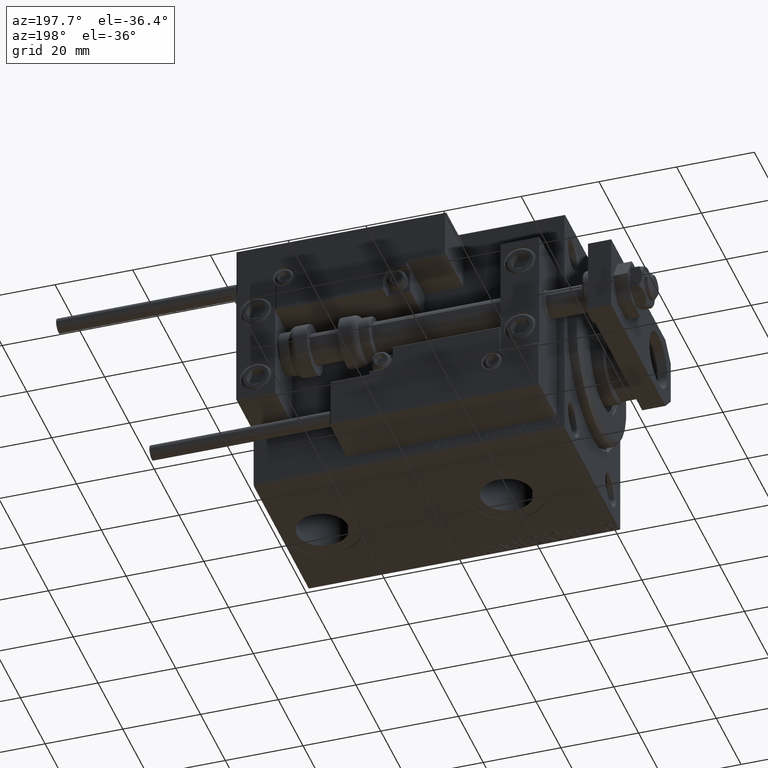
[diagram: clean part render]
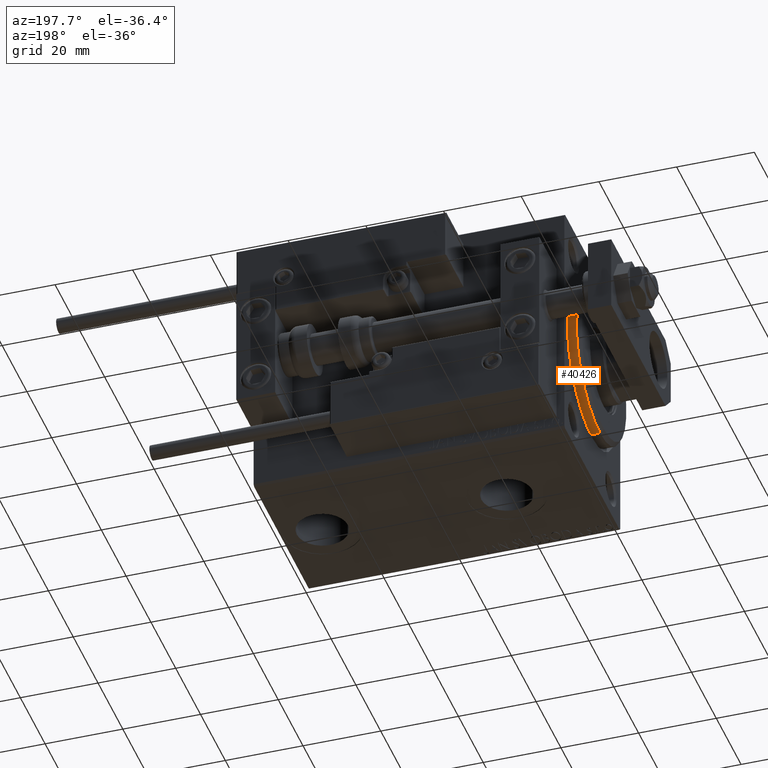
[diagram: same view with one face highlighted and labeled with its STEP entity id]
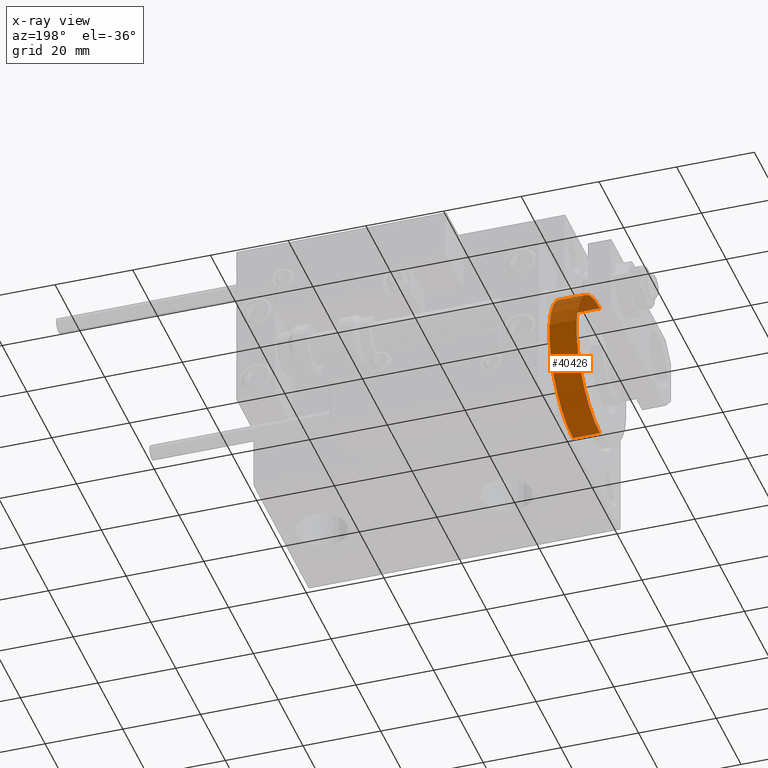
[diagram: x-ray of the same camera — body ghosted, the highlighted face saturated]
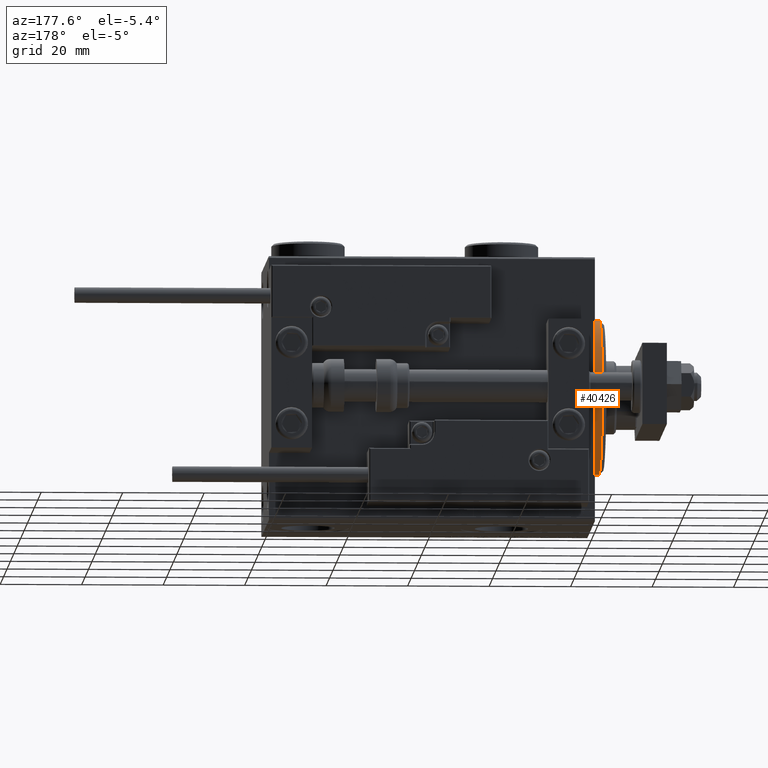
[diagram: same view with one face highlighted and labeled with its STEP entity id]
A machine part, auxiliary view. The second image highlights one B-rep face of the part: STEP entity #40426.
The next image is the same camera in x-ray: the body ghosted, the highlighted face saturated — about 11% of this face is hidden behind the body in this view.
A second angle (auxiliary view) of the same face is appended — the face is thin or edge-on in the first view.
In plain terms, the highlighted cylindrical surface (partial cylindrical patch) has radius 19 mm, axis along (1, -0, -0).
Its self-contained STEP definition (entity closure, byte-faithful):
#1681 = DIRECTION ( 'NONE',  ( -1.000000000000000000, 0.000000000000000000, 0.000000000000000000 ) ) ;
#3229 = LINE ( 'NONE', #19433, #25429 ) ;
#5125 = CIRCLE ( 'NONE', #17889, 19.00000000000000000 ) ;
#6780 = CARTESIAN_POINT ( 'NONE',  ( 1.999999999999992228, 2.326828918379970970E-15, -19.00000000000000000 ) ) ;
#7649 = ORIENTED_EDGE ( 'NONE', *, *, #28369, .F. ) ;
#12065 = FACE_OUTER_BOUND ( 'NONE', #23482, .T. ) ;
#13676 = VECTOR ( 'NONE', #48780, 1000.000000000000000 ) ;
#14953 = CARTESIAN_POINT ( 'NONE',  ( 1.999999999999992228, 0.000000000000000000, 0.000000000000000000 ) ) ;
#15210 = DIRECTION ( 'NONE',  ( -1.000000000000000000, 0.000000000000000000, 0.000000000000000000 ) ) ;
#17889 = AXIS2_PLACEMENT_3D ( 'NONE', #33594, #1681, #33851 ) ;
#19433 = CARTESIAN_POINT ( 'NONE',  ( 3.000000000000000000, 2.326828918379970970E-15, -19.00000000000000000 ) ) ;
#20999 = CARTESIAN_POINT ( 'NONE',  ( -5.000000000000000000, 2.326828918379970970E-15, -19.00000000000000000 ) ) ;
#21349 = CARTESIAN_POINT ( 'NONE',  ( 1.999999999999992228, 0.000000000000000000, 19.00000000000000000 ) ) ;
#23482 = EDGE_LOOP ( 'NONE', ( #28855, #43862, #52079, #7649 ) ) ;
#23550 = CYLINDRICAL_SURFACE ( 'NONE', #37231, 19.00000000000000000 ) ;
#24379 = VERTEX_POINT ( 'NONE', #6780 ) ;
#25429 = VECTOR ( 'NONE', #43638, 1000.000000000000000 ) ;
#28369 = EDGE_CURVE ( 'NONE', #51512, #36174, #5125, .T. ) ;
#28564 = CARTESIAN_POINT ( 'NONE',  ( -5.000000000000000000, 0.000000000000000000, 19.00000000000000000 ) ) ;
#28855 = ORIENTED_EDGE ( 'NONE', *, *, #43142, .F. ) ;
#29385 = EDGE_CURVE ( 'NONE', #46443, #36174, #40811, .T. ) ;
#29875 = AXIS2_PLACEMENT_3D ( 'NONE', #14953, #15210, #43655 ) ;
#30970 = EDGE_CURVE ( 'NONE', #24379, #46443, #41767, .T. ) ;
#33594 = CARTESIAN_POINT ( 'NONE',  ( -5.000000000000000000, 0.000000000000000000, 0.000000000000000000 ) ) ;
#33851 = DIRECTION ( 'NONE',  ( 0.000000000000000000, 0.000000000000000000, 1.000000000000000000 ) ) ;
#35767 = DIRECTION ( 'NONE',  ( -1.000000000000000000, -0.000000000000000000, -0.000000000000000000 ) ) ;
#36174 = VERTEX_POINT ( 'NONE', #28564 ) ;
#37231 = AXIS2_PLACEMENT_3D ( 'NONE', #48764, #35767, #43995 ) ;
#40426 = ADVANCED_FACE ( 'NONE', ( #12065 ), #23550, .T. ) ;
#40811 = LINE ( 'NONE', #49850, #13676 ) ;
#41767 = CIRCLE ( 'NONE', #29875, 19.00000000000000000 ) ;
#43142 = EDGE_CURVE ( 'NONE', #24379, #51512, #3229, .T. ) ;
#43638 = DIRECTION ( 'NONE',  ( -1.000000000000000000, -0.000000000000000000, -0.000000000000000000 ) ) ;
#43655 = DIRECTION ( 'NONE',  ( 0.000000000000000000, 0.000000000000000000, -1.000000000000000000 ) ) ;
#43862 = ORIENTED_EDGE ( 'NONE', *, *, #30970, .T. ) ;
#43995 = DIRECTION ( 'NONE',  ( 0.000000000000000000, 0.000000000000000000, 1.000000000000000000 ) ) ;
#46443 = VERTEX_POINT ( 'NONE', #21349 ) ;
#48764 = CARTESIAN_POINT ( 'NONE',  ( 3.000000000000000000, 0.000000000000000000, 0.000000000000000000 ) ) ;
#48780 = DIRECTION ( 'NONE',  ( -1.000000000000000000, -0.000000000000000000, -0.000000000000000000 ) ) ;
#49850 = CARTESIAN_POINT ( 'NONE',  ( 3.000000000000000000, 0.000000000000000000, 19.00000000000000000 ) ) ;
#51512 = VERTEX_POINT ( 'NONE', #20999 ) ;
#52079 = ORIENTED_EDGE ( 'NONE', *, *, #29385, .T. ) ;